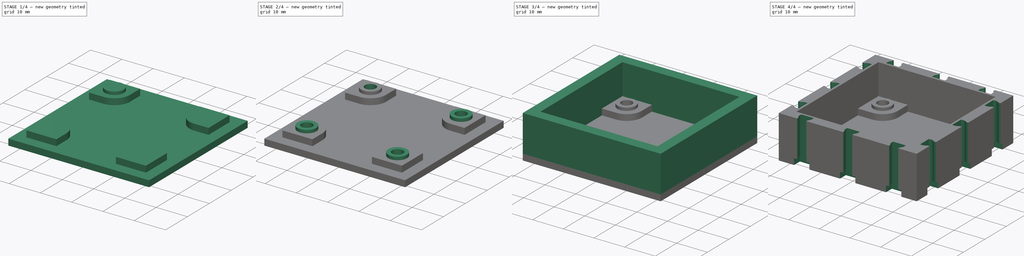
[diagram: build sequence overview — one tinted view per stage of 4, left to right]
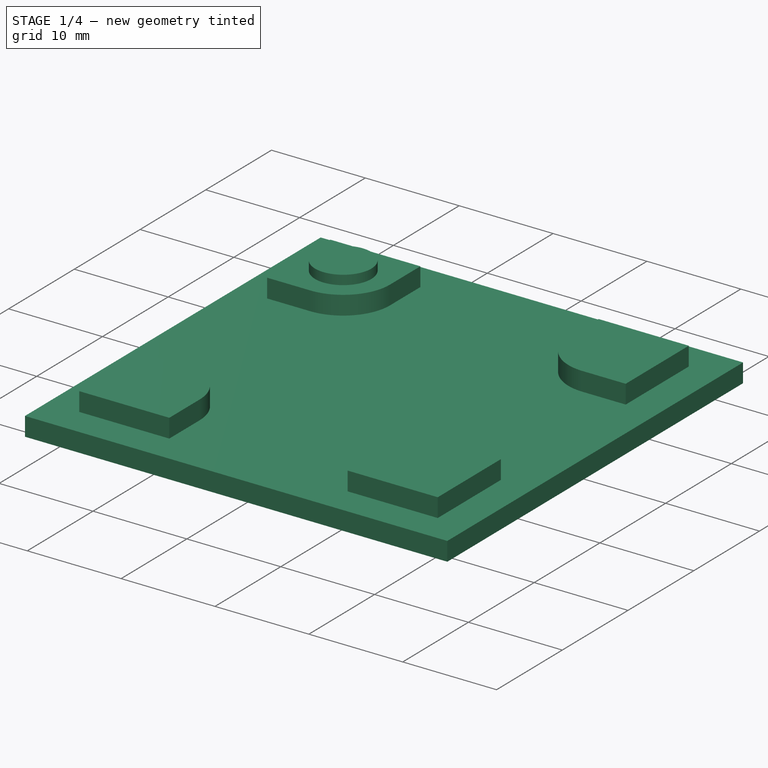
[diagram: stage 1 of 4 — iso view after this stage's code; geometry added in this stage tinted green]
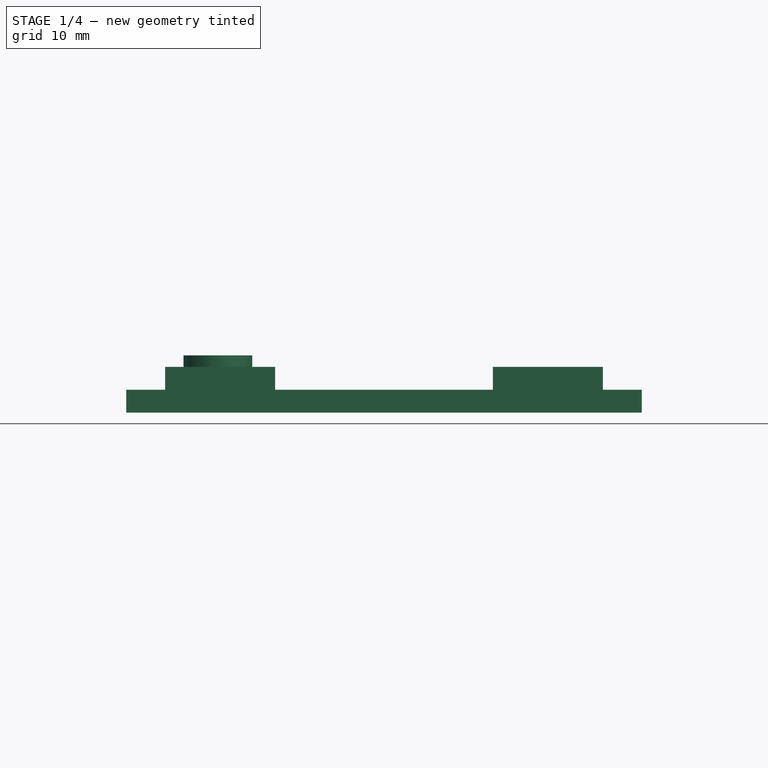
[diagram: stage 1 of 4 — front view after this stage's code; geometry added in this stage tinted green]
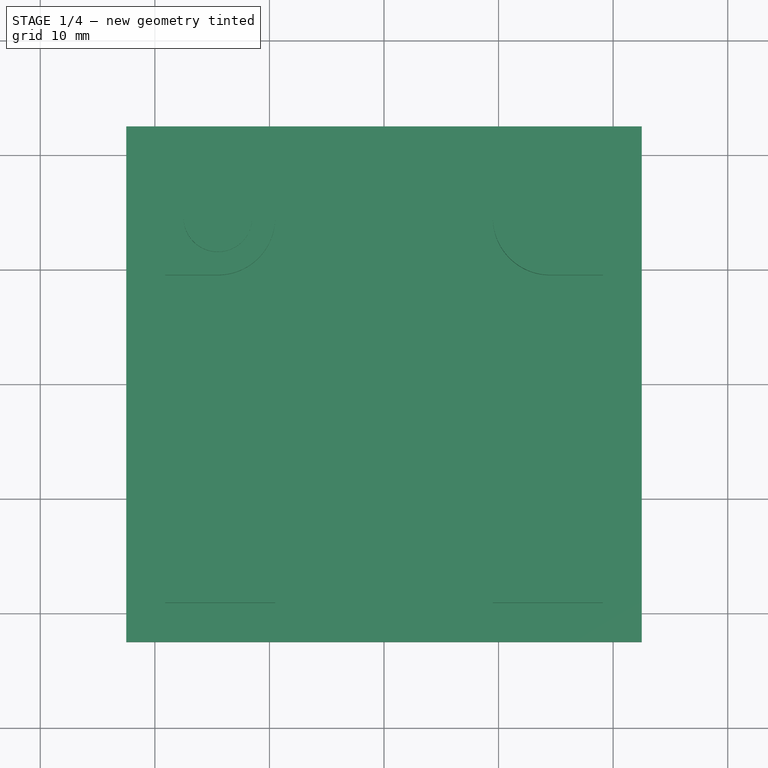
[diagram: stage 1 of 4 — top view after this stage's code; geometry added in this stage tinted green]
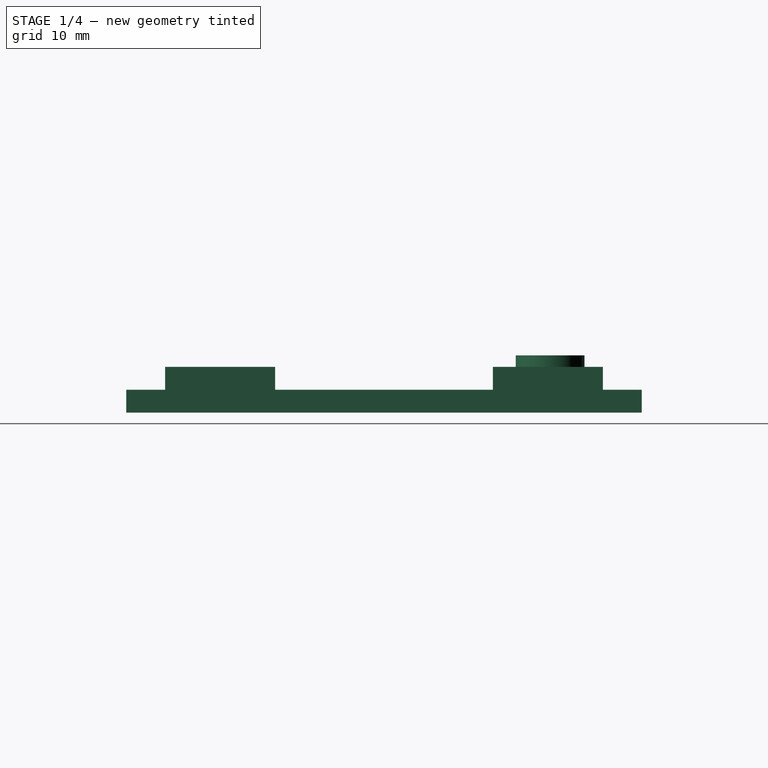
[diagram: stage 1 of 4 — right view after this stage's code; geometry added in this stage tinted green]
FCSTD DOCUMENT  (FreeCAD 0.16R6707 (Git))
Label: bottom
License: All rights reserved
LicenseURL: http://en.wikipedia.org/wiki/All_rights_reserved
objects: Sketcher::SketchObject×8, PartDesign::PolarPattern×6, PartDesign::Pad×4, PartDesign::Pocket×4, PartDesign::LinearPattern×2, PartDesign::MultiTransform×2
note: 34 computed .brp shape members not serialized (recipe doc carries the construction recipe); baked Part::Feature solids carry a one-line shape summary decoded from their .brp

FEATURE [Sketcher::SketchObject] Sketch
  sketch-geometry (4):
    g0: LineSegment StartX=-22.5 StartY=22.5 StartZ=0 EndX=22.5 EndY=22.5 EndZ=0
    g1: LineSegment StartX=22.5 StartY=22.5 StartZ=0 EndX=22.5 EndY=-22.5 EndZ=0
    g2: LineSegment StartX=22.5 StartY=-22.5 StartZ=0 EndX=-22.5 EndY=-22.5 EndZ=0
    g3: LineSegment StartX=-22.5 StartY=-22.5 StartZ=0 EndX=-22.5 EndY=22.5 EndZ=0
  constraints (12):
    c: Coincident(g0,g1)
    c: Coincident(g1,g2)
    c: Coincident(g2,g3)
    c: Coincident(g3,g0)
    c: Horizontal(g0)
    c: Horizontal(g2)
    c: Vertical(g1)
    c: Vertical(g3)
    c: Symmetric(g0,g0,g-2)
    c: Symmetric(g0,g2,g-1)
    c: DistanceX(g0,g0) = 45
    c: DistanceY(g2,g0) = 45
FEATURE [PartDesign::Pad] Pad
  Length = 2
  Length2 = 100
  Sketch = -> Sketch
  Type = 0
FEATURE [Sketcher::SketchObject] Sketch001
  Placement = pos=(0,0,2) rot=(0,0,1;0rad)
  Support = -> Pad [Face6]
  sketch-geometry (5):
    g0: ArcOfCircle CenterX=-14.5 CenterY=14.5 CenterZ=0 NormalX=0 NormalY=0 NormalZ=1 Radius=5 StartAngle=4.71239 EndAngle=6.28319
    g1: LineSegment StartX=-14.5 StartY=9.5 StartZ=0 EndX=-19.1 EndY=9.5 EndZ=0
    g2: LineSegment StartX=-19.1 StartY=9.5 StartZ=0 EndX=-19.1 EndY=19.1 EndZ=0
    g3: LineSegment StartX=-19.1 StartY=19.1 StartZ=0 EndX=-9.5 EndY=19.1 EndZ=0
    g4: LineSegment StartX=-9.5 StartY=19.1 StartZ=0 EndX=-9.5 EndY=14.5 EndZ=0
  constraints (14):
    c: DistanceX(g0,g-1) = 14.5
    c: DistanceY(g-1,g0) = 14.5
    c: Tangent(g0,g1) = 1.5708
    c: Coincident(g1,g2)
    c: Vertical(g2)
    c: Coincident(g2,g3)
    c: Horizontal(g3)
    c: Coincident(g3,g4)
    c: Coincident(g4,g0)
    c: Vertical(g4)
    c: Radius(g0) = 5
    c: DistanceX(g2,g3) = 9.6
    c: DistanceY(g1,g2) = 9.6
    c: Horizontal(g1)
FEATURE [PartDesign::Pad] Pad001
  Length = 2
  Length2 = 100
  Sketch = -> Sketch001
  Type = 0
FEATURE [PartDesign::PolarPattern] PolarPattern
  Angle = 360
  Axis = -> Sketch001 [N_Axis]
  Occurrences = 4
  Originals = -> [Pad001]
FEATURE [Sketcher::SketchObject] Sketch002
  Placement = pos=(0,0,4) rot=(0,0,1;0rad)
  Support = -> PolarPattern [Face30]
  sketch-geometry (1):
    g0: Circle CenterX=-14.5 CenterY=14.5 CenterZ=0 NormalX=0 NormalY=0 NormalZ=1 Radius=3
  constraints (3):
    c: DistanceX(g0,g-1) = 14.5
    c: DistanceY(g-1,g0) = 14.5
    c: Radius(g0) = 3
FEATURE [PartDesign::Pad] Pad002
  Length = 1
  Length2 = 100
  Sketch = -> Sketch002
  Type = 0
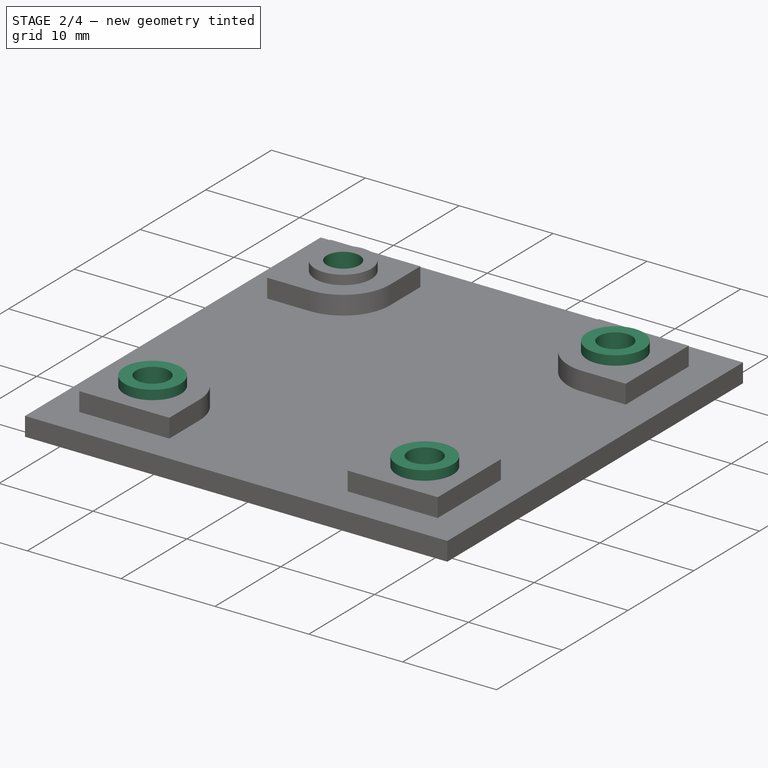
[diagram: stage 2 of 4 — iso view after this stage's code; geometry added in this stage tinted green]
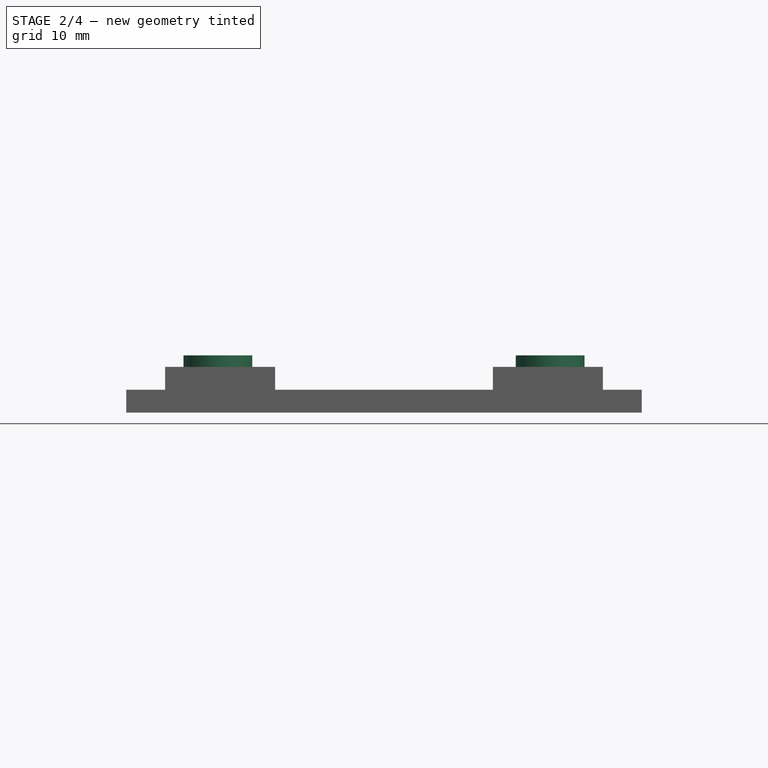
[diagram: stage 2 of 4 — front view after this stage's code; geometry added in this stage tinted green]
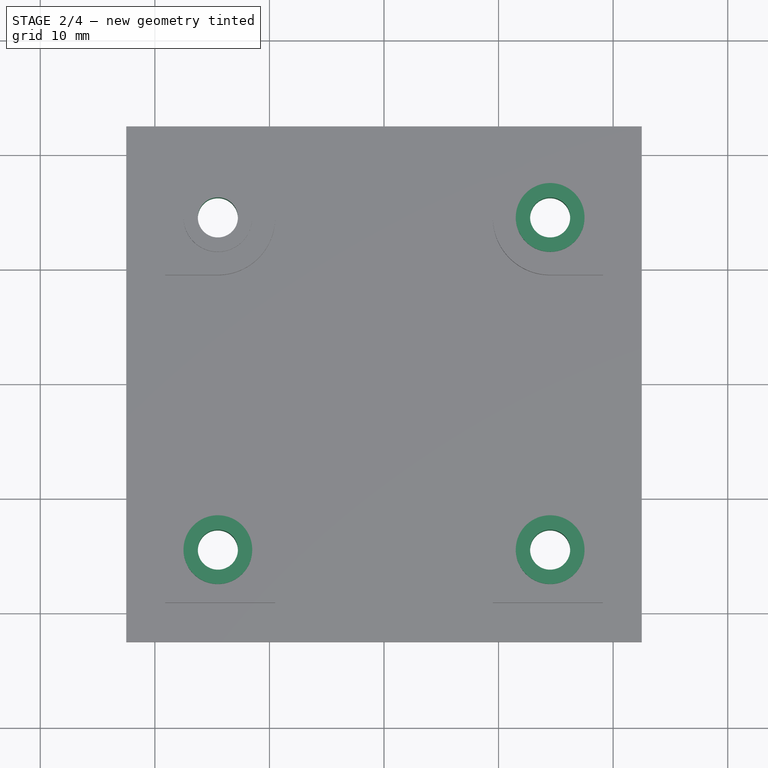
[diagram: stage 2 of 4 — top view after this stage's code; geometry added in this stage tinted green]
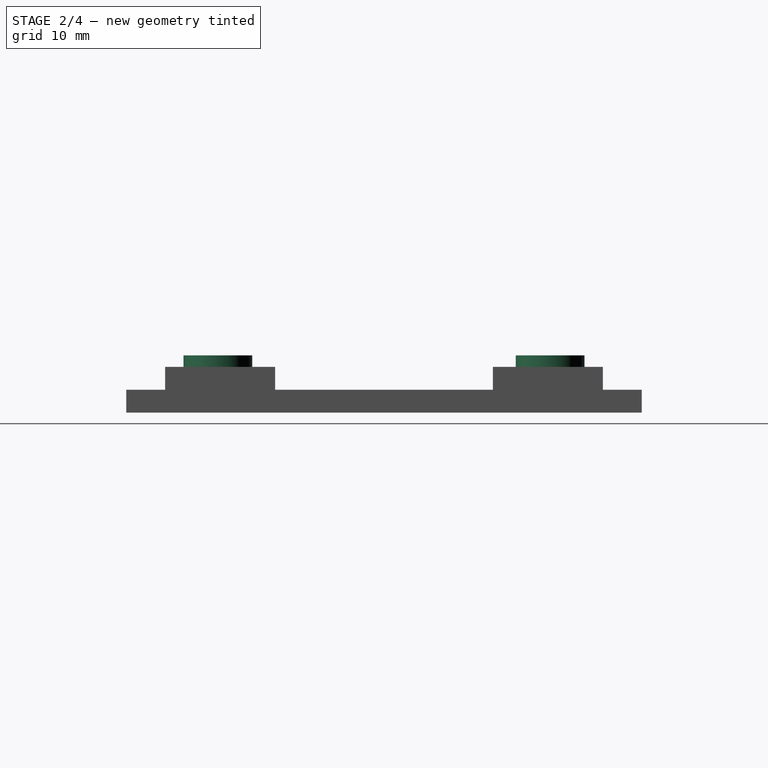
[diagram: stage 2 of 4 — right view after this stage's code; geometry added in this stage tinted green]
FEATURE [PartDesign::PolarPattern] PolarPattern001
  Angle = 360
  Axis = -> Sketch002 [N_Axis]
  Occurrences = 4
  Originals = -> [Pad002]
FEATURE [Sketcher::SketchObject] Sketch003
  Placement = pos=(0,0,5) rot=(0,0,1;0rad)
  Support = -> PolarPattern001 [Face38]
  sketch-geometry (1):
    g0: Circle CenterX=-14.5 CenterY=14.5 CenterZ=0 NormalX=0 NormalY=0 NormalZ=1 Radius=1.75
  constraints (3):
    c: DistanceX(g0,g-1) = 14.5
    c: DistanceY(g-1,g0) = 14.5
    c: Radius(g0) = 1.75
FEATURE [PartDesign::Pocket] Pocket
  Length = 5
  Sketch = -> Sketch003
  Type = 1
FEATURE [PartDesign::PolarPattern] PolarPattern002
  Angle = 360
  Axis = -> Sketch003 [N_Axis]
  Occurrences = 4
  Originals = -> [Pocket]
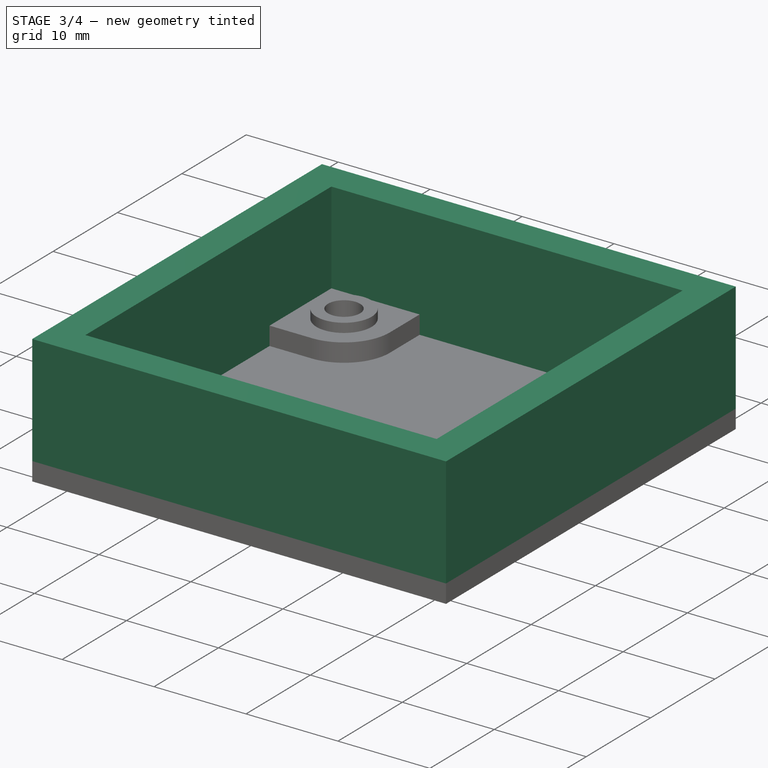
[diagram: stage 3 of 4 — iso view after this stage's code; geometry added in this stage tinted green]
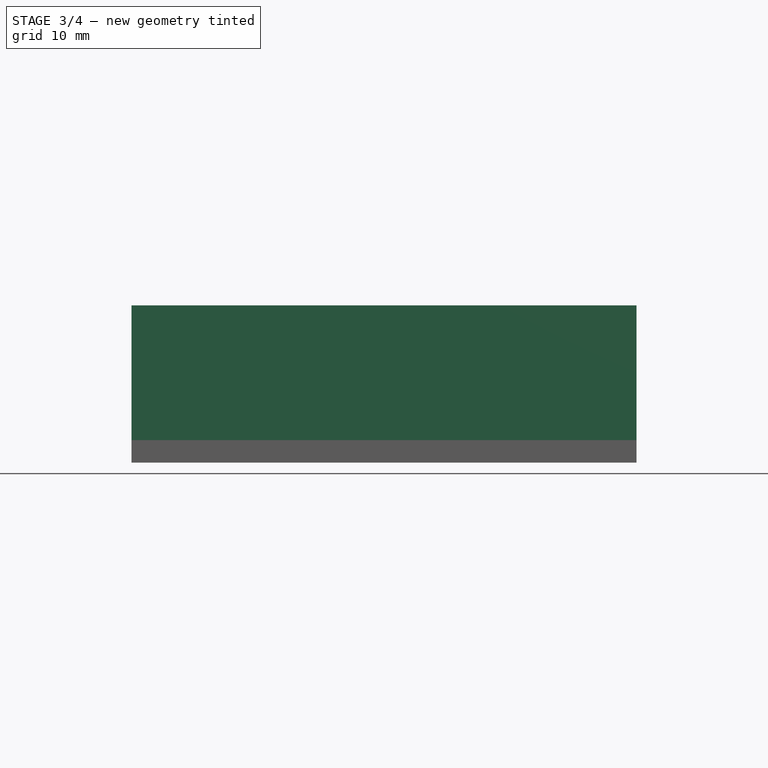
[diagram: stage 3 of 4 — front view after this stage's code; geometry added in this stage tinted green]
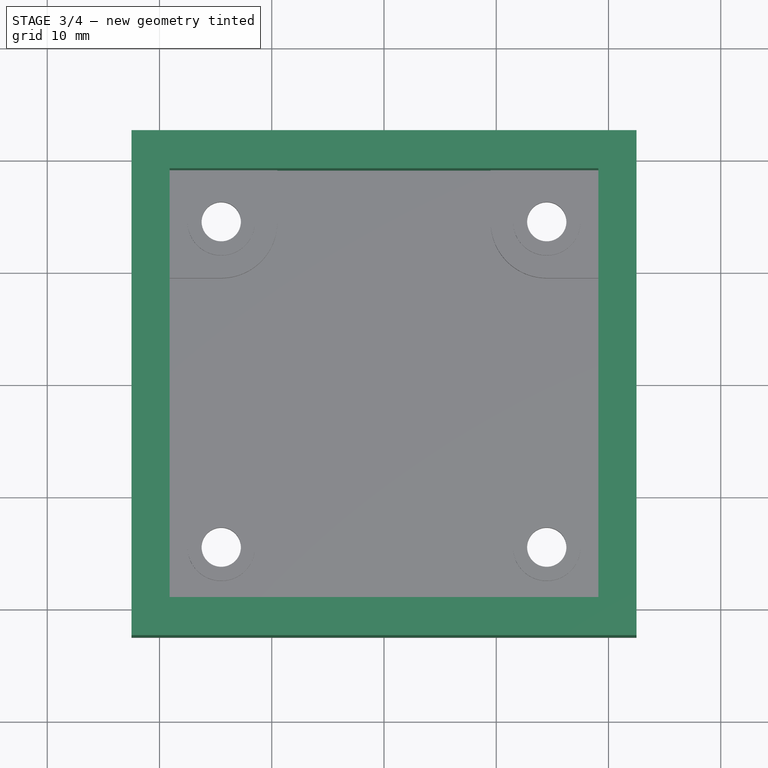
[diagram: stage 3 of 4 — top view after this stage's code; geometry added in this stage tinted green]
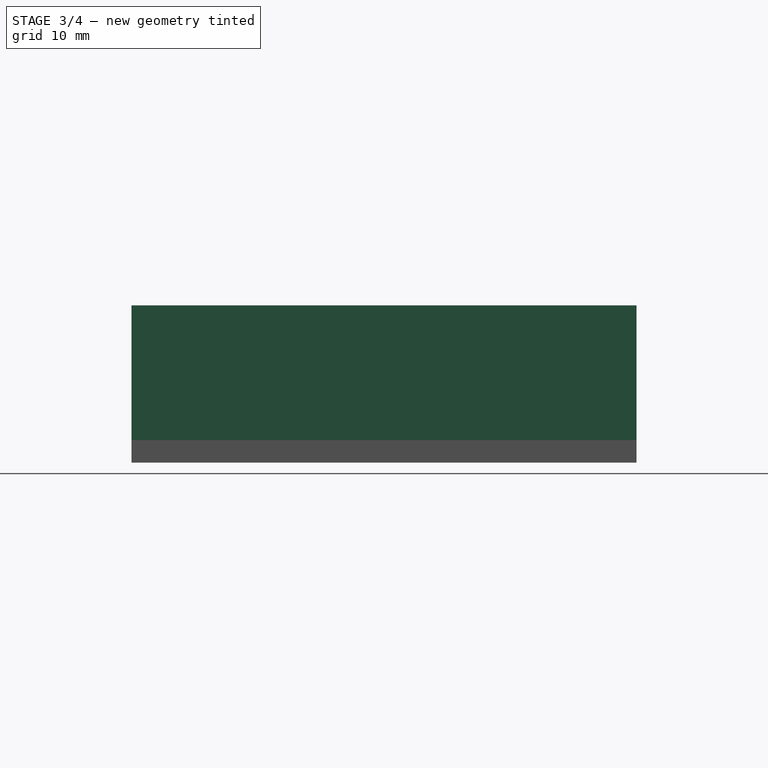
[diagram: stage 3 of 4 — right view after this stage's code; geometry added in this stage tinted green]
FEATURE [Sketcher::SketchObject] Sketch004
  Placement = pos=(0,0,0) rot=(1,0,0;3.14159rad)
  Support = -> PolarPattern002 [Face4]
  sketch-geometry (1):
    g0: Circle CenterX=-14.5 CenterY=14.5 CenterZ=0 NormalX=0 NormalY=0 NormalZ=1 Radius=3.5
  constraints (3):
    c: DistanceX(g0,g-1) = 14.5
    c: DistanceY(g-1,g0) = 14.5
    c: Radius(g0) = 3.5
FEATURE [PartDesign::Pocket] Pocket001
  Length = 2.5
  Sketch = -> Sketch004
  Type = 0
FEATURE [PartDesign::PolarPattern] PolarPattern003
  Angle = 360
  Axis = -> Sketch004 [N_Axis]
  Occurrences = 4
  Originals = -> [Pocket001]
FEATURE [Sketcher::SketchObject] Sketch005
  Placement = pos=(0,0,2) rot=(0,0,1;0rad)
  Support = -> PolarPattern003 [Face5]
  sketch-geometry (8):
    g0: LineSegment StartX=-22.5 StartY=22.5 StartZ=0 EndX=22.5 EndY=22.5 EndZ=0
    g1: LineSegment StartX=22.5 StartY=22.5 StartZ=0 EndX=22.5 EndY=-22.5 EndZ=0
    g2: LineSegment StartX=22.5 StartY=-22.5 StartZ=0 EndX=-22.5 EndY=-22.5 EndZ=0
    g3: LineSegment StartX=-22.5 StartY=-22.5 StartZ=0 EndX=-22.5 EndY=22.5 EndZ=0
    g4: LineSegment StartX=-19.1 StartY=19.1 StartZ=0 EndX=19.1 EndY=19.1 EndZ=0
    g5: LineSegment StartX=19.1 StartY=19.1 StartZ=0 EndX=19.1 EndY=-19.1 EndZ=0
    g6: LineSegment StartX=19.1 StartY=-19.1 StartZ=0 EndX=-19.1 EndY=-19.1 EndZ=0
    g7: LineSegment StartX=-19.1 StartY=-19.1 StartZ=0 EndX=-19.1 EndY=19.1 EndZ=0
  constraints (24):
    c: Coincident(g0,g1)
    c: Coincident(g1,g2)
    c: Coincident(g2,g3)
    c: Coincident(g3,g0)
    c: Horizontal(g0)
    c: Horizontal(g2)
    c: Vertical(g1)
    c: Vertical(g3)
    c: Symmetric(g0,g0,g-2)
    c: Symmetric(g0,g2,g-1)
    c: DistanceX(g0,g0) = 45
    c: DistanceY(g2,g0) = 45
    c: Coincident(g4,g5)
    c: Coincident(g5,g6)
    c: Coincident(g6,g7)
    c: Coincident(g7,g4)
    c: Horizontal(g4)
    c: Horizontal(g6)
    c: Vertical(g5)
    c: Vertical(g7)
    c: Symmetric(g4,g4,g-2)
    c: Symmetric(g4,g6,g-1)
    c: DistanceX(g0,g4) = 3.4
    c: DistanceY(g4,g0) = 3.4
FEATURE [PartDesign::Pad] Pad003
  Length = 12
  Length2 = 100
  Sketch = -> Sketch005
  Type = 0
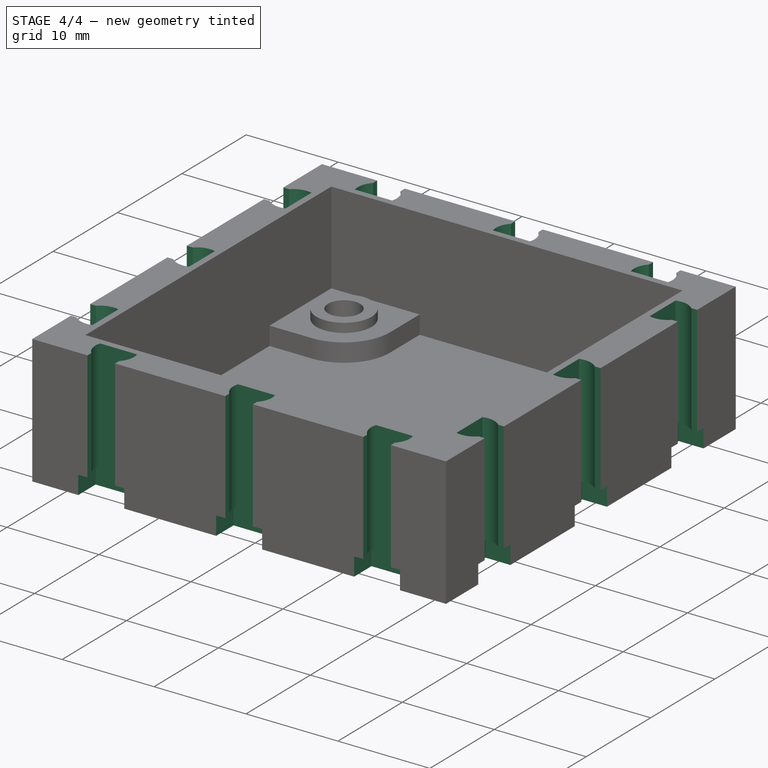
[diagram: stage 4 of 4 — iso view after this stage's code; geometry added in this stage tinted green]
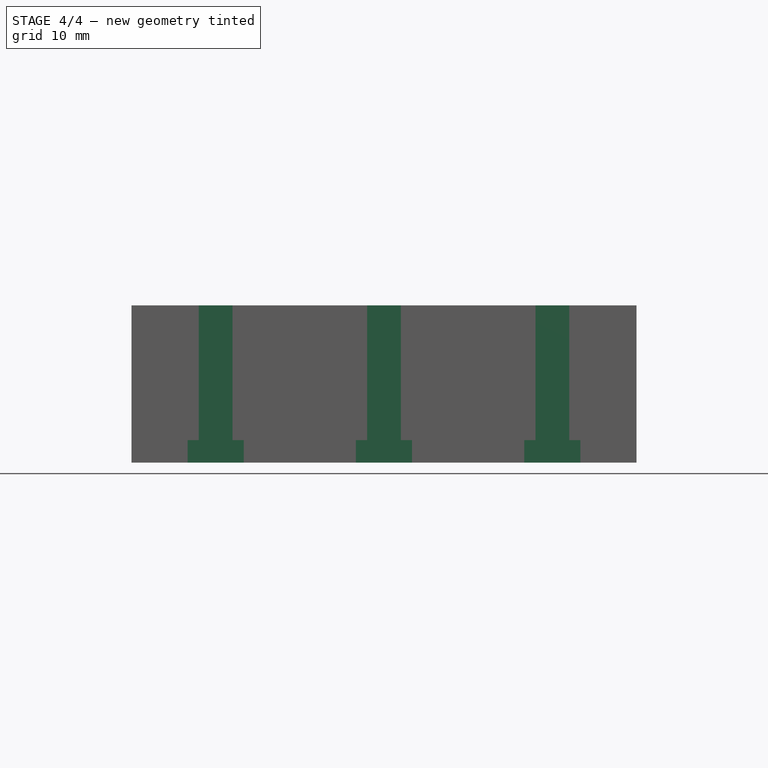
[diagram: stage 4 of 4 — front view after this stage's code; geometry added in this stage tinted green]
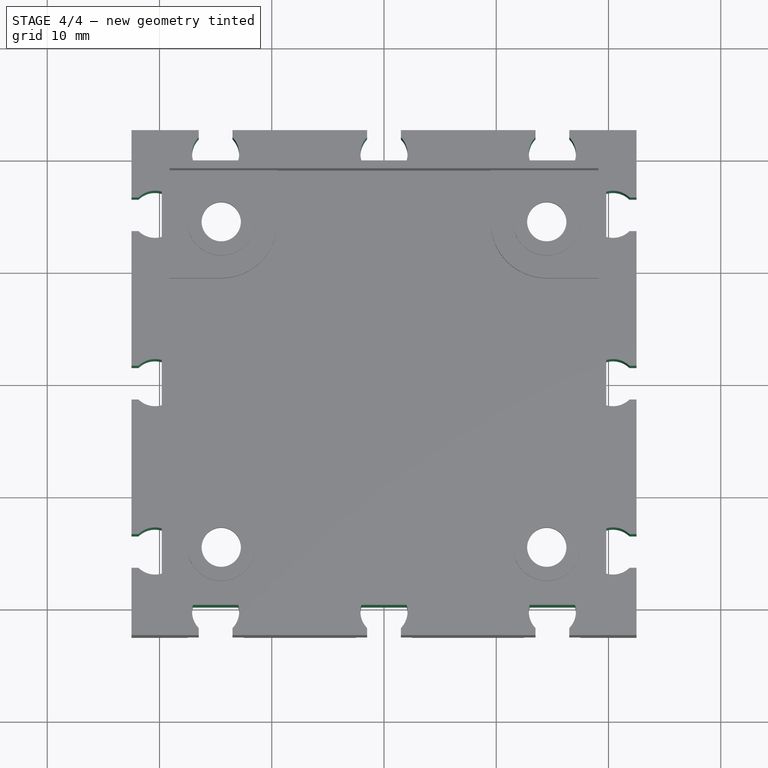
[diagram: stage 4 of 4 — top view after this stage's code; geometry added in this stage tinted green]
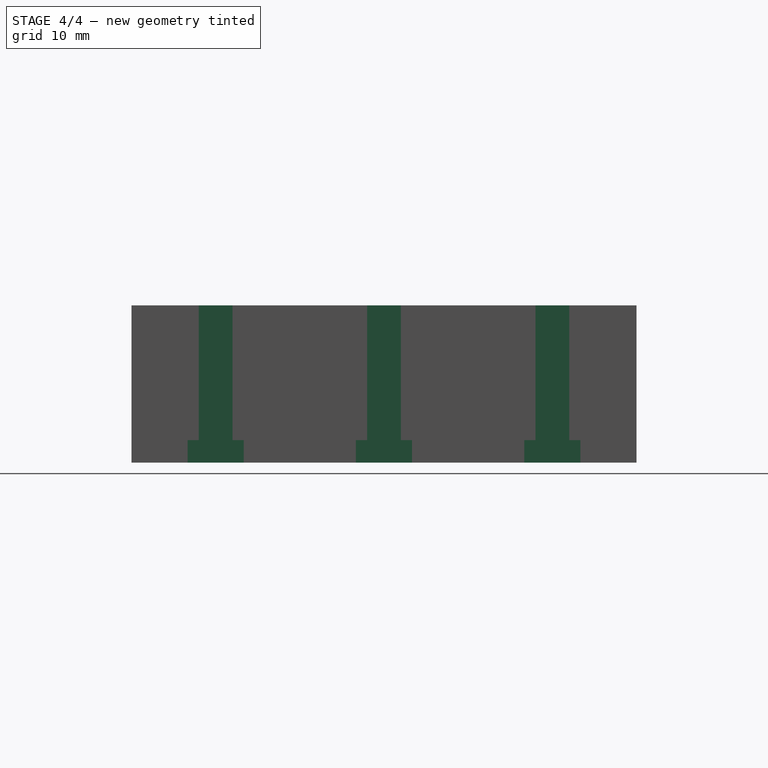
[diagram: stage 4 of 4 — right view after this stage's code; geometry added in this stage tinted green]
FEATURE [Sketcher::SketchObject] Sketch006
  Placement = pos=(0,0,14) rot=(0,0,1;0rad)
  Support = -> Pad003 [Face1]
  sketch-geometry (8):
    g0: LineSegment StartX=-22.5 StartY=-16.5 StartZ=0 EndX=-22.5 EndY=-13.5 EndZ=0
    g1: LineSegment StartX=-22.5 StartY=-13.5 StartZ=0 EndX=-21.8697 EndY=-13.5 EndZ=0
    g2: LineSegment StartX=-22.5 StartY=-16.5 StartZ=0 EndX=-21.8697 EndY=-16.5 EndZ=0
    g3: ArcOfCircle CenterX=-20.4 CenterY=-15 CenterZ=0 NormalX=0 NormalY=0 NormalZ=1 Radius=2.1 StartAngle=1.28104 EndAngle=2.34599
    g4: ArcOfCircle CenterX=-20.4 CenterY=-15 CenterZ=0 NormalX=0 NormalY=0 NormalZ=1 Radius=2.1 StartAngle=3.9372 EndAngle=5.00214
    g5: LineSegment StartX=-19.8 StartY=-12.9875 StartZ=0 EndX=-19.8 EndY=-17.0125 EndZ=0
    g6: GeomPoint [constr] X=-22.5 Y=-15 Z=0
    g7: LineSegment [constr] StartX=-21.8697 StartY=-13.5 StartZ=0 EndX=-21.8697 EndY=-16.5 EndZ=0
  constraints (23):
    c: Vertical(g0)
    c: Coincident(g1,g0)
    c: Horizontal(g1)
    c: Coincident(g2,g0)
    c: Horizontal(g2)
    c: DistanceY(g0,g0) = 3
    c: Coincident(g3,g1)
    c: Coincident(g4,g3)
    c: Coincident(g4,g2)
    c: Coincident(g5,g3)
    c: Coincident(g5,g4)
    c: Vertical(g5)
    c: PointOnObject(g6,g0)
    c: Symmetric(g0,g0,g6)
    c: DistanceX(g6,g3) = 2.1
    c: Radius(g4) = 2.1
    c: Equal(g4,g3)
    c: DistanceX(g3,g3) = 0.6
    c: Coincident(g7,g1)
    c: Coincident(g7,g2)
    c: Vertical(g7)
    c: DistanceX(g6,g-1) = 22.5
    c: DistanceY(g6,g-1) = 15
FEATURE [PartDesign::Pocket] Pocket002
  Length = 5
  Sketch = -> Sketch006
  Type = 1
FEATURE [PartDesign::LinearPattern] LinearPattern
  Direction = -> Sketch006 [V_Axis]
  Length = 30
  Occurrences = 3
FEATURE [PartDesign::PolarPattern] PolarPattern004
  Angle = 360
  Axis = -> Sketch006 [N_Axis]
  Occurrences = 4
FEATURE [PartDesign::MultiTransform] MultiTransform
  Originals = -> [Pocket002]
  Transformations = -> [LinearPattern,PolarPattern004]
FEATURE [Sketcher::SketchObject] Sketch007
  Placement = pos=(0,0,0) rot=(1,0,0;3.14159rad)
  Support = -> MultiTransform [Face83]
  sketch-geometry (5):
    g0: LineSegment StartX=-22.5 StartY=-12.5 StartZ=0 EndX=-19.8 EndY=-12.5 EndZ=0
    g1: LineSegment StartX=-19.8 StartY=-12.5 StartZ=0 EndX=-19.8 EndY=-17.5 EndZ=0
    g2: LineSegment StartX=-19.8 StartY=-17.5 StartZ=0 EndX=-22.5 EndY=-17.5 EndZ=0
    g3: LineSegment StartX=-22.5 StartY=-17.5 StartZ=0 EndX=-22.5 EndY=-12.5 EndZ=0
    g4: GeomPoint [constr] X=-22.5 Y=-15 Z=0
  constraints (14):
    c: Coincident(g0,g1)
    c: Coincident(g1,g2)
    c: Coincident(g2,g3)
    c: Coincident(g3,g0)
    c: Horizontal(g0)
    c: Horizontal(g2)
    c: Vertical(g1)
    c: Vertical(g3)
    c: DistanceX(g0,g0) = 2.7
    c: DistanceY(g2,g0) = 5
    c: PointOnObject(g4,g3)
    c: Symmetric(g0,g2,g4)
    c: DistanceX(g4,g-1) = 22.5
    c: DistanceY(g4,g-1) = 15
FEATURE [PartDesign::Pocket] Pocket003
  Length = 2
  Sketch = -> Sketch007
  Type = 0
FEATURE [PartDesign::LinearPattern] LinearPattern001
  Direction = -> Sketch007 [V_Axis]
  Length = 30
  Occurrences = 3
FEATURE [PartDesign::PolarPattern] PolarPattern005
  Angle = 360
  Axis = -> Sketch007 [N_Axis]
  Occurrences = 4
FEATURE [PartDesign::MultiTransform] MultiTransform001
  Originals = -> [Pocket003]
  Transformations = -> [LinearPattern001,PolarPattern005]
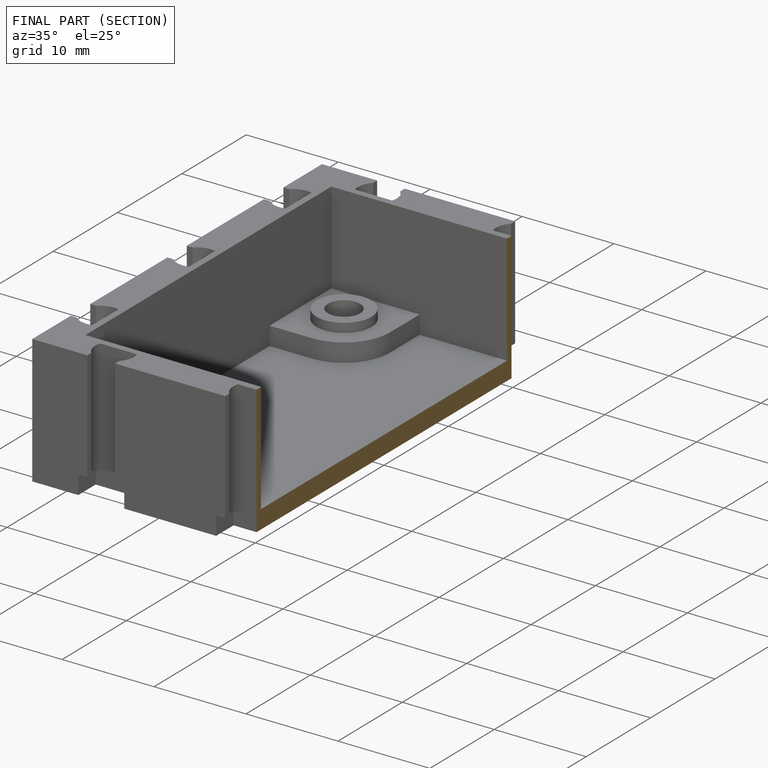
[diagram: finished part — half-section view (interior)]
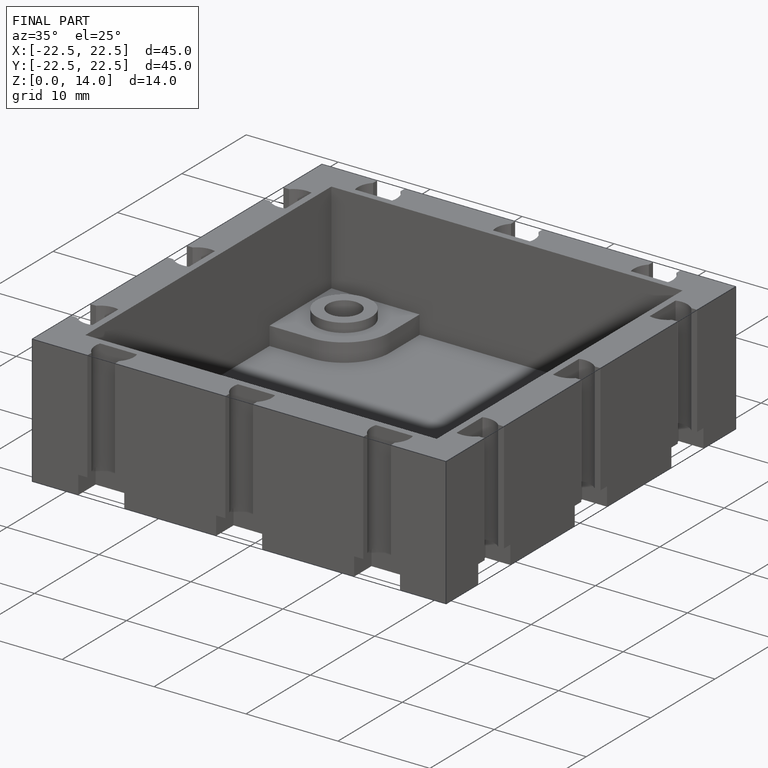
[diagram: finished part — iso view with bounding-box wireframe]
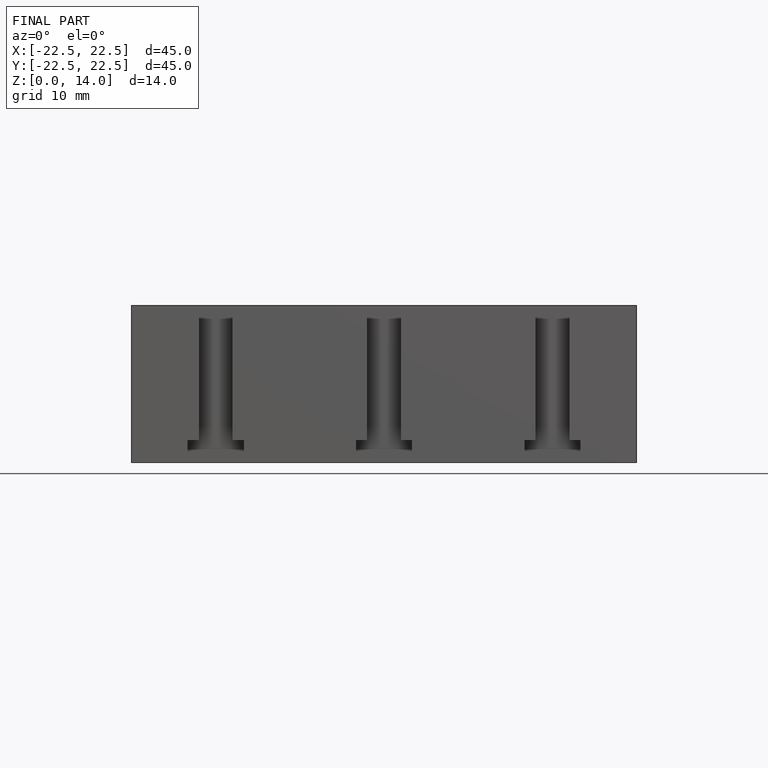
[diagram: finished part — front view with bounding-box wireframe]
